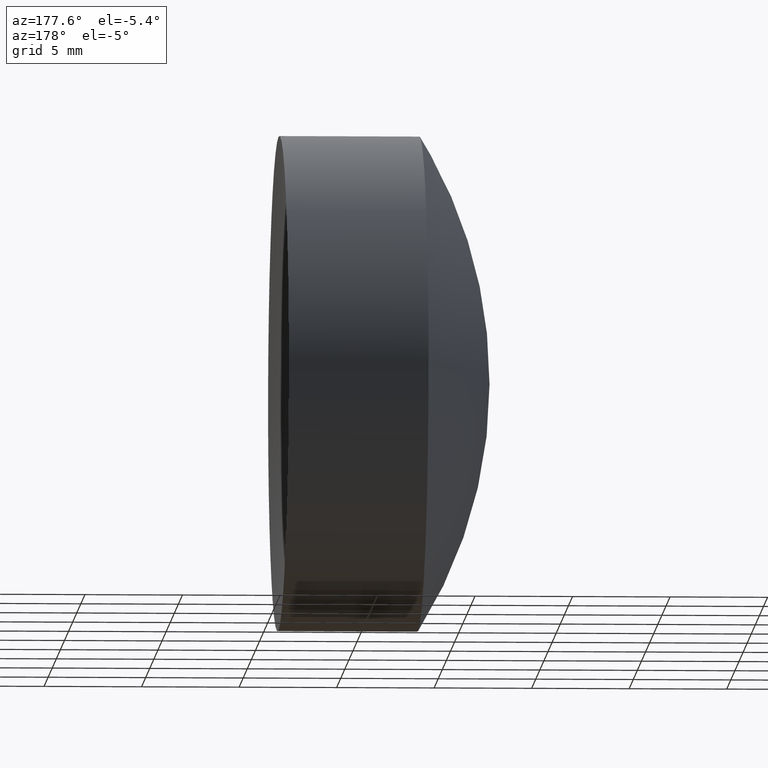
[diagram: clean part render]
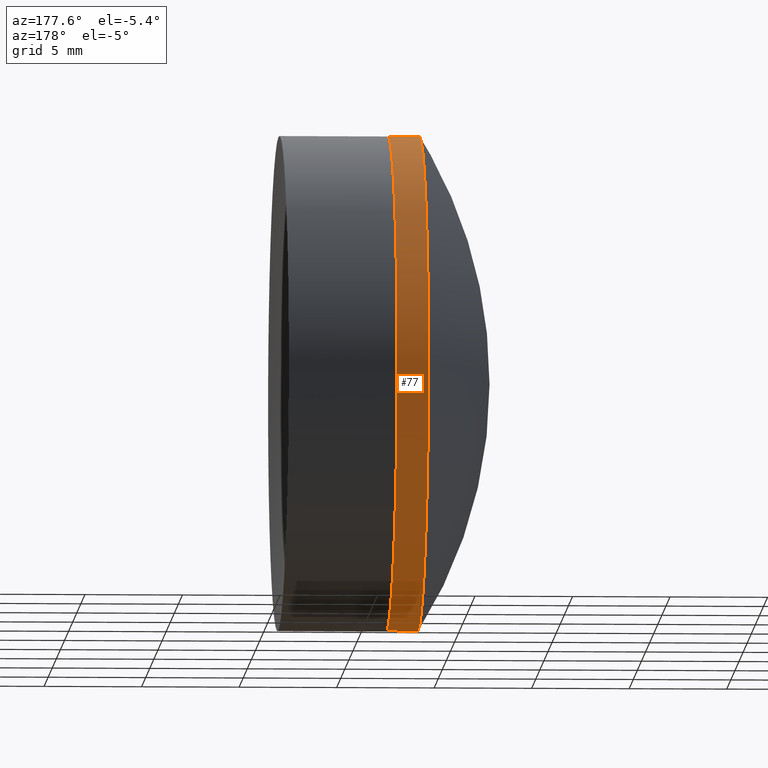
[diagram: same view with one face highlighted and labeled with its STEP entity id]
A machine part, auxiliary view. The second image highlights one B-rep face of the part: STEP entity #77.
In plain terms, the highlighted cylindrical surface (partial cylindrical patch) has radius 12.7 mm, axis along (-1, -0, -0).
Its self-contained STEP definition (entity closure, byte-faithful):
#14 = DIRECTION ( 'NONE',  ( 0.0000000000000000000, 0.0000000000000000000, 1.000000000000000000 ) ) ;
#25 = VERTEX_POINT ( 'NONE', #38 ) ;
#29 = EDGE_CURVE ( 'NONE', #231, #25, #322, .T. ) ;
#38 = CARTESIAN_POINT ( 'NONE',  ( 36.86375097237397100, 1.555301434917137400E-015, -12.69999999999999000 ) ) ;
#39 = CIRCLE ( 'NONE', #257, 12.69999999999999400 ) ;
#48 = CARTESIAN_POINT ( 'NONE',  ( 36.86375097237397100, 0.0000000000000000000, 0.0000000000000000000 ) ) ;
#64 = CARTESIAN_POINT ( 'NONE',  ( 38.47534975385649100, 0.0000000000000000000, 0.0000000000000000000 ) ) ;
#66 = CARTESIAN_POINT ( 'NONE',  ( -0.8160621761658039000, 0.0000000000000000000, 12.69999999999999400 ) ) ;
#71 = EDGE_CURVE ( 'NONE', #241, #231, #347, .T. ) ;
#76 = ORIENTED_EDGE ( 'NONE', *, *, #295, .F. ) ;
#77 = ADVANCED_FACE ( 'NONE', ( #321 ), #206, .T. ) ;
#82 = DIRECTION ( 'NONE',  ( -1.000000000000000000, -0.0000000000000000000, -0.0000000000000000000 ) ) ;
#83 = DIRECTION ( 'NONE',  ( -1.000000000000000000, -0.0000000000000000000, -0.0000000000000000000 ) ) ;
#87 = ORIENTED_EDGE ( 'NONE', *, *, #121, .F. ) ;
#100 = CARTESIAN_POINT ( 'NONE',  ( -0.8160621761658039000, 1.555301434917138000E-015, -12.69999999999999400 ) ) ;
#108 = DIRECTION ( 'NONE',  ( 0.0000000000000000000, 0.0000000000000000000, 1.000000000000000000 ) ) ;
#121 = EDGE_CURVE ( 'NONE', #241, #202, #135, .T. ) ;
#133 = CARTESIAN_POINT ( 'NONE',  ( 36.86375097237397100, 0.0000000000000000000, 12.69999999999999000 ) ) ;
#135 = LINE ( 'NONE', #66, #313 ) ;
#146 = AXIS2_PLACEMENT_3D ( 'NONE', #64, #246, #179 ) ;
#150 = DIRECTION ( 'NONE',  ( -1.000000000000000000, -0.0000000000000000000, -0.0000000000000000000 ) ) ;
#179 = DIRECTION ( 'NONE',  ( 0.0000000000000000000, 0.0000000000000000000, 1.000000000000000000 ) ) ;
#202 = VERTEX_POINT ( 'NONE', #133 ) ;
#206 = CYLINDRICAL_SURFACE ( 'NONE', #293, 12.69999999999999400 ) ;
#215 = VECTOR ( 'NONE', #83, 1000.000000000000000 ) ;
#226 = DIRECTION ( 'NONE',  ( -1.000000000000000000, -0.0000000000000000000, -0.0000000000000000000 ) ) ;
#231 = VERTEX_POINT ( 'NONE', #251 ) ;
#241 = VERTEX_POINT ( 'NONE', #259 ) ;
#246 = DIRECTION ( 'NONE',  ( -1.000000000000000000, -0.0000000000000000000, -0.0000000000000000000 ) ) ;
#251 = CARTESIAN_POINT ( 'NONE',  ( 38.47534975385649100, 1.555301434917138000E-015, -12.69999999999999400 ) ) ;
#252 = ORIENTED_EDGE ( 'NONE', *, *, #29, .T. ) ;
#257 = AXIS2_PLACEMENT_3D ( 'NONE', #48, #82, #108 ) ;
#259 = CARTESIAN_POINT ( 'NONE',  ( 38.47534975385649100, 0.0000000000000000000, 12.69999999999999400 ) ) ;
#293 = AXIS2_PLACEMENT_3D ( 'NONE', #338, #226, #14 ) ;
#295 = EDGE_CURVE ( 'NONE', #202, #25, #39, .T. ) ;
#313 = VECTOR ( 'NONE', #150, 1000.000000000000000 ) ;
#321 = FACE_OUTER_BOUND ( 'NONE', #337, .T. ) ;
#322 = LINE ( 'NONE', #100, #215 ) ;
#334 = ORIENTED_EDGE ( 'NONE', *, *, #71, .T. ) ;
#337 = EDGE_LOOP ( 'NONE', ( #334, #252, #76, #87 ) ) ;
#338 = CARTESIAN_POINT ( 'NONE',  ( -0.8160621761658039000, 0.0000000000000000000, 0.0000000000000000000 ) ) ;
#347 = CIRCLE ( 'NONE', #146, 12.69999999999999400 ) ;